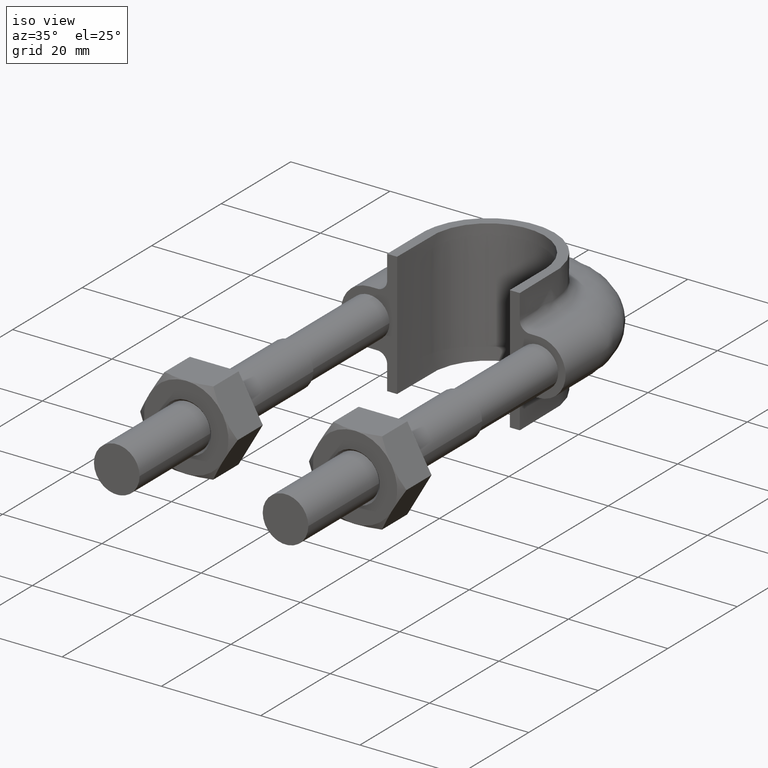
[diagram: clean part render]
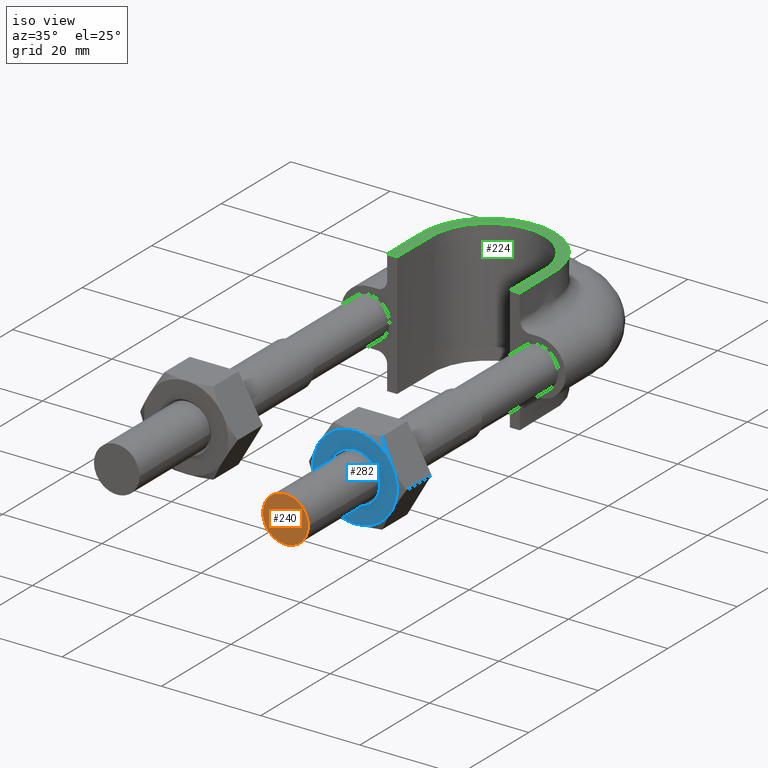
[diagram: same view with three faces highlighted in distinct colors, each labeled with its STEP entity id]
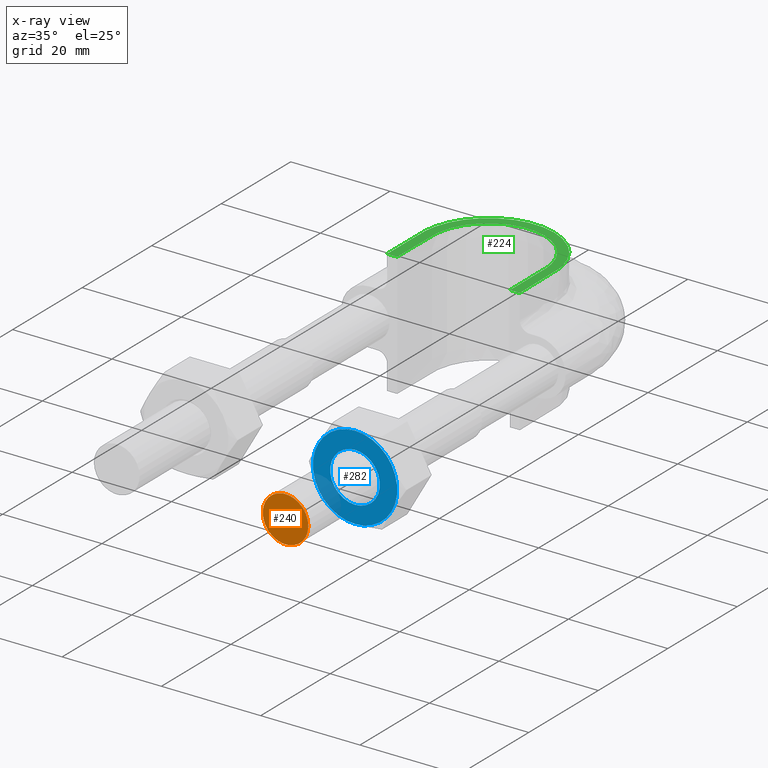
[diagram: x-ray of the same camera — body ghosted, the three highlighted faces saturated]
A machine part, iso view with three faces highlighted in distinct colors.
The next image is the same camera in x-ray (body ghosted, the three faces saturated) — at least one of them is partly hidden behind the body in this view.
Their STEP definitions:

[orange] entity #240 — the highlighted planar face has unit normal (-0, -1, 0).
#240 = ADVANCED_FACE( '', ( #346 ), #347, .T. );
#346 = FACE_OUTER_BOUND( '', #1425, .T. );
#347 = PLANE( '', #1426 );
#1425 = EDGE_LOOP( '', ( #1697 ) );
#1426 = AXIS2_PLACEMENT_3D( '', #1698, #1699, #1700 );
#1697 = ORIENTED_EDGE( '', *, *, #2132, .T. );
#1698 = CARTESIAN_POINT( '', ( 17.0000000000000, -4.16366160299608E-015, -1.40829730689573E-016 ) );
#1699 = DIRECTION( '', ( -2.44921270764475E-016, -1.00000000000000, 3.06151588455594E-016 ) );
#1700 = DIRECTION( '', ( -1.00000000000000, 2.44921270764475E-016, 0.000000000000000 ) );
#2132 = EDGE_CURVE( '', #2311, #2311, #2312, .T. );
#2311 = VERTEX_POINT( '', #2759 );
#2312 = CIRCLE( '', #2760, 4.60000000000000 );
#2759 = CARTESIAN_POINT( '', ( 21.6000000000000, -5.29029944851267E-015, -1.40829730689573E-016 ) );
#2760 = AXIS2_PLACEMENT_3D( '', #3150, #3151, #3152 );
#3150 = CARTESIAN_POINT( '', ( 17.0000000000000, -4.16366160299608E-015, -1.40829730689573E-016 ) );
#3151 = DIRECTION( '', ( -2.44921270764475E-016, -1.00000000000000, 3.06151588455594E-016 ) );
#3152 = DIRECTION( '', ( 1.00000000000000, -2.44921270764475E-016, -1.09476442525376E-047 ) );

[blue] entity #282 — the highlighted planar face has unit normal (-0, 1, -0).
#282 = ADVANCED_FACE( '', ( #439, #440 ), #441, .F. );
#439 = FACE_OUTER_BOUND( '', #1518, .T. );
#440 = FACE_BOUND( '', #1519, .T. );
#441 = PLANE( '', #1520 );
#1518 = EDGE_LOOP( '', ( #1993, #1994, #1995, #1996, #1997, #1998 ) );
#1519 = EDGE_LOOP( '', ( #1999 ) );
#1520 = AXIS2_PLACEMENT_3D( '', #2000, #2001, #2002 );
#1993 = ORIENTED_EDGE( '', *, *, #2221, .F. );
#1994 = ORIENTED_EDGE( '', *, *, #2225, .F. );
#1995 = ORIENTED_EDGE( '', *, *, #2203, .F. );
#1996 = ORIENTED_EDGE( '', *, *, #2219, .F. );
#1997 = ORIENTED_EDGE( '', *, *, #2189, .F. );
#1998 = ORIENTED_EDGE( '', *, *, #2226, .F. );
#1999 = ORIENTED_EDGE( '', *, *, #2227, .T. );
#2000 = CARTESIAN_POINT( '', ( 17.0000000000000, 20.0000000000000, -6.36480885357616E-015 ) );
#2001 = DIRECTION( '', ( -7.49830360911066E-032, 1.00000000000000, -3.06151588455594E-016 ) );
#2002 = DIRECTION( '', ( 1.00000000000000, 1.09476442525376E-047, -2.44921270764475E-016 ) );
#2189 = EDGE_CURVE( '', #2406, #2408, #2409, .T. );
#2203 = EDGE_CURVE( '', #2426, #2433, #2434, .T. );
#2219 = EDGE_CURVE( '', #2408, #2426, #2461, .T. );
#2221 = EDGE_CURVE( '', #2463, #2464, #2465, .T. );
#2225 = EDGE_CURVE( '', #2433, #2463, #2471, .T. );
#2226 = EDGE_CURVE( '', #2464, #2406, #2472, .T. );
#2227 = EDGE_CURVE( '', #2473, #2473, #2474, .T. );
#2406 = VERTEX_POINT( '', #2932 );
#2408 = VERTEX_POINT( '', #2939 );
#2409 = CIRCLE( '', #2940, 8.50000000000000 );
#2426 = VERTEX_POINT( '', #2972 );
#2433 = VERTEX_POINT( '', #2991 );
#2434 = CIRCLE( '', #2992, 8.50000000000000 );
#2461 = CIRCLE( '', #3030, 8.50000000000000 );
#2463 = VERTEX_POINT( '', #3032 );
#2464 = VERTEX_POINT( '', #3033 );
#2465 = CIRCLE( '', #3034, 8.50000000000000 );
#2471 = CIRCLE( '', #3050, 8.50000000000000 );
#2472 = CIRCLE( '', #3051, 8.50000000000000 );
#2473 = VERTEX_POINT( '', #3052 );
#2474 = CIRCLE( '', #3053, 5.00000000000000 );
#2932 = CARTESIAN_POINT( '', ( 24.3612159321677, 20.0000000000000, -4.25000000000003 ) );
#2939 = CARTESIAN_POINT( '', ( 17.0000000000000, 20.0000000000000, -8.50000000000001 ) );
#2940 = AXIS2_PLACEMENT_3D( '', #3246, #3247, #3248 );
#2972 = CARTESIAN_POINT( '', ( 9.63878406783228, 20.0000000000000, -4.25000000000001 ) );
#2991 = CARTESIAN_POINT( '', ( 9.63878406783228, 20.0000000000000, 4.24999999999999 ) );
#2992 = AXIS2_PLACEMENT_3D( '', #3262, #3263, #3264 );
#3030 = AXIS2_PLACEMENT_3D( '', #3295, #3296, #3297 );
#3032 = CARTESIAN_POINT( '', ( 17.0000000000000, 20.0000000000000, 8.49999999999999 ) );
#3033 = CARTESIAN_POINT( '', ( 24.3612159321677, 20.0000000000000, 4.24999999999999 ) );
#3034 = AXIS2_PLACEMENT_3D( '', #3301, #3302, #3303 );
#3050 = AXIS2_PLACEMENT_3D( '', #3307, #3308, #3309 );
#3051 = AXIS2_PLACEMENT_3D( '', #3310, #3311, #3312 );
#3052 = CARTESIAN_POINT( '', ( 17.0000000000000, 20.0000000000000, 4.99999999999999 ) );
#3053 = AXIS2_PLACEMENT_3D( '', #3313, #3314, #3315 );
#3246 = CARTESIAN_POINT( '', ( 17.0000000000000, 20.0000000000000, -6.36480885357616E-015 ) );
#3247 = DIRECTION( '', ( -7.49830360911067E-032, 1.00000000000000, -3.06151588455594E-016 ) );
#3248 = DIRECTION( '', ( 0.000000000000000, 3.06151588455594E-016, 1.00000000000000 ) );
#3262 = CARTESIAN_POINT( '', ( 17.0000000000000, 20.0000000000000, -6.36480885357616E-015 ) );
#3263 = DIRECTION( '', ( -7.49830360911067E-032, 1.00000000000000, -3.06151588455594E-016 ) );
#3264 = DIRECTION( '', ( 0.000000000000000, 3.06151588455594E-016, 1.00000000000000 ) );
#3295 = CARTESIAN_POINT( '', ( 17.0000000000000, 20.0000000000000, -6.36480885357616E-015 ) );
#3296 = DIRECTION( '', ( -7.49830360911067E-032, 1.00000000000000, -3.06151588455594E-016 ) );
#3297 = DIRECTION( '', ( 0.000000000000000, 3.06151588455594E-016, 1.00000000000000 ) );
#3301 = CARTESIAN_POINT( '', ( 17.0000000000000, 20.0000000000000, -6.36480885357616E-015 ) );
#3302 = DIRECTION( '', ( -7.49830360911067E-032, 1.00000000000000, -3.06151588455594E-016 ) );
#3303 = DIRECTION( '', ( 0.000000000000000, 3.06151588455594E-016, 1.00000000000000 ) );
#3307 = CARTESIAN_POINT( '', ( 17.0000000000000, 20.0000000000000, -6.36480885357616E-015 ) );
#3308 = DIRECTION( '', ( -7.49830360911067E-032, 1.00000000000000, -3.06151588455594E-016 ) );
#3309 = DIRECTION( '', ( 0.000000000000000, 3.06151588455594E-016, 1.00000000000000 ) );
#3310 = CARTESIAN_POINT( '', ( 17.0000000000000, 20.0000000000000, -6.36480885357616E-015 ) );
#3311 = DIRECTION( '', ( -7.49830360911067E-032, 1.00000000000000, -3.06151588455594E-016 ) );
#3312 = DIRECTION( '', ( 0.000000000000000, 3.06151588455594E-016, 1.00000000000000 ) );
#3313 = CARTESIAN_POINT( '', ( 17.0000000000000, 20.0000000000000, -6.36480885357616E-015 ) );
#3314 = DIRECTION( '', ( -7.49830360911067E-032, 1.00000000000000, -3.06151588455594E-016 ) );
#3315 = DIRECTION( '', ( 0.000000000000000, 3.06151588455594E-016, 1.00000000000000 ) );

[green] entity #224 — the highlighted planar face has unit normal (0, 0, 1).
#224 = ADVANCED_FACE( '', ( #309 ), #310, .T. );
#309 = FACE_OUTER_BOUND( '', #1228, .T. );
#310 = PLANE( '', #1229 );
#1228 = EDGE_LOOP( '', ( #1576, #1577, #1578, #1579 ) );
#1229 = AXIS2_PLACEMENT_3D( '', #1580, #1581, #1582 );
#1576 = ORIENTED_EDGE( '', *, *, #2088, .T. );
#1577 = ORIENTED_EDGE( '', *, *, #2100, .T. );
#1578 = ORIENTED_EDGE( '', *, *, #2098, .T. );
#1579 = ORIENTED_EDGE( '', *, *, #2099, .T. );
#1580 = CARTESIAN_POINT( '', ( 25.0000000000000, 112.600000000000, 12.5000000000000 ) );
#1581 = DIRECTION( '', ( 0.000000000000000, 0.000000000000000, 1.00000000000000 ) );
#1582 = DIRECTION( '', ( 1.00000000000000, 0.000000000000000, 0.000000000000000 ) );
#2088 = EDGE_CURVE( '', #2242, #2240, #2243, .T. );
#2098 = EDGE_CURVE( '', #2256, #2258, #2260, .T. );
#2099 = EDGE_CURVE( '', #2258, #2242, #2261, .T. );
#2100 = EDGE_CURVE( '', #2240, #2256, #2262, .T. );
#2240 = VERTEX_POINT( '', #2490 );
#2242 = VERTEX_POINT( '', #2493 );
#2243 = LINE( '', #2494, #2495 );
#2256 = VERTEX_POINT( '', #2594 );
#2258 = VERTEX_POINT( '', #2597 );
#2260 = LINE( '', #2629, #2630 );
#2261 = B_SPLINE_CURVE_WITH_KNOTS( '', 3, ( #2631, #2632, #2633, #2634, #2635, #2636, #2637, #2638, #2639, #2640, #2641, #2642, #2643, #2644, #2645, #2646, #2647, #2648, #2649 ), .UNSPECIFIED., .F., .F., ( 4, 3, 1, 1, 1, 3, 1, 1, 1, 3, 4 ), ( -6.76641221374046, -6.00000000000000, -5.50000000000000, -5.00000000000000, -4.00000000000000, -3.50000000000000, -3.00000000000000, -2.00000000000000, -1.50000000000000, -1.00000000000000, -0.233587786259539 ), .UNSPECIFIED. );
#2262 = B_SPLINE_CURVE_WITH_KNOTS( '', 3, ( #2650, #2651, #2652, #2653, #2654, #2655, #2656, #2657, #2658, #2659, #2660, #2661, #2662, #2663, #2664, #2665, #2666, #2667, #2668 ), .UNSPECIFIED., .F., .F., ( 4, 3, 1, 1, 1, 3, 1, 1, 1, 3, 4 ), ( 0.233587786259540, 1.00000000000000, 1.50000000000000, 2.00000000000000, 3.00000000000000, 3.50000000000000, 4.00000000000000, 5.00000000000000, 5.50000000000000, 6.00000000000000, 6.76641221374046 ), .UNSPECIFIED. );
#2490 = CARTESIAN_POINT( '', ( -11.3600000000000, 72.6000000000000, 12.5000000000000 ) );
#2493 = CARTESIAN_POINT( '', ( -13.3600000000000, 72.6000000000000, 12.5000000000000 ) );
#2494 = CARTESIAN_POINT( '', ( -25.0000000000000, 72.6000000000000, 12.5000000000000 ) );
#2495 = VECTOR( '', #3094, 1000.00000000000 );
#2594 = CARTESIAN_POINT( '', ( 11.3600000000000, 72.6000000000000, 12.5000000000000 ) );
#2597 = CARTESIAN_POINT( '', ( 13.3600000000000, 72.6000000000000, 12.5000000000000 ) );
#2629 = CARTESIAN_POINT( '', ( -25.0000000000000, 72.6000000000000, 12.5000000000000 ) );
#2630 = VECTOR( '', #3098, 1000.00000000000 );
#2631 = CARTESIAN_POINT( '', ( 13.3600000000000, 72.6000000000000, 12.5000000000000 ) );
#2632 = CARTESIAN_POINT( '', ( 13.3600000000000, 75.9466666666666, 12.5000000000000 ) );
#2633 = CARTESIAN_POINT( '', ( 13.3600000000000, 79.2933333333333, 12.5000000000000 ) );
#2634 = CARTESIAN_POINT( '', ( 13.3600000000000, 82.6400000000000, 12.5000000000000 ) );
#2635 = CARTESIAN_POINT( '', ( 13.3600000000000, 84.0243844002116, 12.5000000000000 ) );
#2636 = CARTESIAN_POINT( '', ( 12.9030271653616, 86.8385025897862, 12.5000000000000 ) );
#2637 = CARTESIAN_POINT( '', ( 10.3559347208131, 91.8876580329545, 12.5000000000000 ) );
#2638 = CARTESIAN_POINT( '', ( 5.59795283105410, 95.3461150577033, 12.5000000000000 ) );
#2639 = CARTESIAN_POINT( '', ( 1.39948820776354, 95.9945757498437, 12.5000000000000 ) );
#2640 = CARTESIAN_POINT( '', ( 1.78270889054930E-014, 95.9945757498437, 12.5000000000000 ) );
#2641 = CARTESIAN_POINT( '', ( -1.39948820776350, 95.9945757498437, 12.5000000000000 ) );
#2642 = CARTESIAN_POINT( '', ( -5.59795283105406, 95.3461150577033, 12.5000000000000 ) );
#2643 = CARTESIAN_POINT( '', ( -10.3559347208131, 91.8876580329545, 12.5000000000000 ) );
#2644 = CARTESIAN_POINT( '', ( -12.9030271653615, 86.8385025897862, 12.5000000000000 ) );
#2645 = CARTESIAN_POINT( '', ( -13.3600000000000, 84.0243844002116, 12.5000000000000 ) );
#2646 = CARTESIAN_POINT( '', ( -13.3600000000000, 82.6400000000000, 12.5000000000000 ) );
#2647 = CARTESIAN_POINT( '', ( -13.3600000000000, 79.2933333333333, 12.5000000000000 ) );
#2648 = CARTESIAN_POINT( '', ( -13.3600000000000, 75.9466666666666, 12.5000000000000 ) );
#2649 = CARTESIAN_POINT( '', ( -13.3600000000000, 72.6000000000000, 12.5000000000000 ) );
#2650 = CARTESIAN_POINT( '', ( -11.3600000000000, 72.6000000000000, 12.5000000000000 ) );
#2651 = CARTESIAN_POINT( '', ( -11.3600000000000, 75.9466666666667, 12.5000000000000 ) );
#2652 = CARTESIAN_POINT( '', ( -11.3600000000000, 79.2933333333333, 12.5000000000000 ) );
#2653 = CARTESIAN_POINT( '', ( -11.3600000000000, 82.6400000000000, 12.5000000000000 ) );
#2654 = CARTESIAN_POINT( '', ( -11.3600000000000, 83.8077712693896, 12.5000000000000 ) );
#2655 = CARTESIAN_POINT( '', ( -10.9694754798677, 86.2135804441069, 12.5000000000000 ) );
#2656 = CARTESIAN_POINT( '', ( -8.80678888755957, 90.5012231129956, 12.5000000000000 ) );
#2657 = CARTESIAN_POINT( '', ( -4.75977254080473, 93.4440020251130, 12.5000000000000 ) );
#2658 = CARTESIAN_POINT( '', ( -1.18994313520117, 93.9957730711349, 12.5000000000000 ) );
#2659 = CARTESIAN_POINT( '', ( 1.84496759974430E-014, 93.9957730711349, 12.5000000000000 ) );
#2660 = CARTESIAN_POINT( '', ( 1.18994313520120, 93.9957730711349, 12.5000000000000 ) );
#2661 = CARTESIAN_POINT( '', ( 4.75977254080476, 93.4440020251129, 12.5000000000000 ) );
#2662 = CARTESIAN_POINT( '', ( 8.80678888755960, 90.5012231129957, 12.5000000000000 ) );
#2663 = CARTESIAN_POINT( '', ( 10.9694754798677, 86.2135804441069, 12.5000000000000 ) );
#2664 = CARTESIAN_POINT( '', ( 11.3600000000000, 83.8077712693896, 12.5000000000000 ) );
#2665 = CARTESIAN_POINT( '', ( 11.3600000000000, 82.6400000000000, 12.5000000000000 ) );
#2666 = CARTESIAN_POINT( '', ( 11.3600000000000, 79.2933333333333, 12.5000000000000 ) );
#2667 = CARTESIAN_POINT( '', ( 11.3600000000000, 75.9466666666667, 12.5000000000000 ) );
#2668 = CARTESIAN_POINT( '', ( 11.3600000000000, 72.6000000000000, 12.5000000000000 ) );
#3094 = DIRECTION( '', ( 1.00000000000000, -1.22460635382238E-016, 0.000000000000000 ) );
#3098 = DIRECTION( '', ( 1.00000000000000, -1.22460635382238E-016, 0.000000000000000 ) );